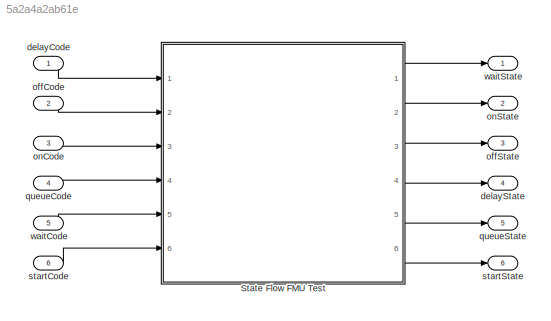
MODEL slx_5a2a4a2ab61e
KIND model
CONFIG AbsTol = auto
CONFIG EnableMultiTasking = off
CONFIG FixedStep = auto
CONFIG MaxStep = auto
CONFIG MinStep = auto
CONFIG RelTol = 1e-3
CONFIG SampleTimeConstraint = Unconstrained
CONFIG SolverName = FixedStepAuto
CONFIG StartTime = 0.0
CONFIG StopTime = 5.0
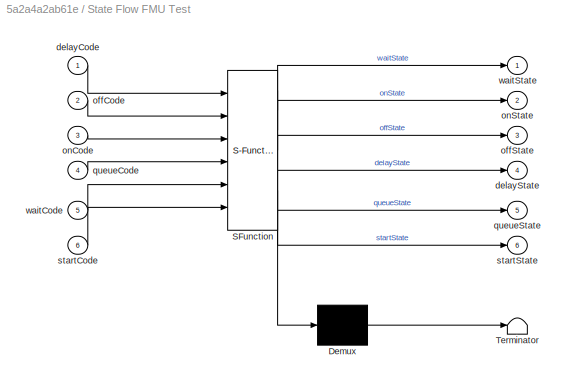
BLOCK [SubSystem] State Flow FMU Test
  ErrorFcn = Stateflow.Translate.translate
  PermitHierarchicalResolution = ExplicitOnly
  Ports = [6, 6]
  RequestExecContextInheritance = off
  SFBlockType = Chart
  TreatAsAtomicUnit = on
BLOCK [Demux] State Flow FMU Test/ Demux 
  Outputs = 1
  Ports = [1, 1]
BLOCK [S-Function] State Flow FMU Test/ SFunction 
  EnableBusSupport = on
  FunctionName = sf_sfun
  PortCounts = [6 7]
  Ports = [6, 7]
  SFcnIsStateOwnerBlock = off
  SFunctionDeploymentMode = off
  Tag = Stateflow S-Function 3
BLOCK [Terminator] State Flow FMU Test/ Terminator 
BLOCK [Inport] State Flow FMU Test/delayCode
BLOCK [Outport] State Flow FMU Test/delayState
  Port = 4
BLOCK [Inport] State Flow FMU Test/offCode
  Port = 2
BLOCK [Outport] State Flow FMU Test/offState
  Port = 3
BLOCK [Inport] State Flow FMU Test/onCode
  Port = 3
BLOCK [Outport] State Flow FMU Test/onState
  Port = 2
BLOCK [Inport] State Flow FMU Test/queueCode
  Port = 4
BLOCK [Outport] State Flow FMU Test/queueState
  Port = 5
BLOCK [Inport] State Flow FMU Test/startCode
  Port = 6
BLOCK [Outport] State Flow FMU Test/startState
  Port = 6
BLOCK [Inport] State Flow FMU Test/waitCode
  Port = 5
BLOCK [Outport] State Flow FMU Test/waitState
BLOCK [Inport] delayCode
BLOCK [Outport] delayState
  Port = 4
BLOCK [Inport] offCode
  Port = 2
BLOCK [Outport] offState
  Port = 3
BLOCK [Inport] onCode
  Port = 3
BLOCK [Outport] onState
  Port = 2
BLOCK [Inport] queueCode
  Port = 4
BLOCK [Outport] queueState
  Port = 5
BLOCK [Inport] startCode
  Port = 6
BLOCK [Outport] startState
  Port = 6
BLOCK [Inport] waitCode
  Port = 5
BLOCK [Outport] waitState
LINE State Flow FMU Test:1 -> waitState:1
LINE State Flow FMU Test:2 -> onState:1
LINE State Flow FMU Test:3 -> offState:1
LINE State Flow FMU Test:4 -> delayState:1
LINE State Flow FMU Test:5 -> queueState:1
LINE State Flow FMU Test:6 -> startState:1
LINE delayCode:1 -> State Flow FMU Test:1
LINE offCode:1 -> State Flow FMU Test:2
LINE onCode:1 -> State Flow FMU Test:3
LINE queueCode:1 -> State Flow FMU Test:4
LINE startCode:1 -> State Flow FMU Test:6
LINE waitCode:1 -> State Flow FMU Test:5
CHART State Flow FMU Test states=6 transitions=13
  STATE_LABEL 'start/\nstartState=1;\ndelayState=1;\n'
  STATE_LABEL 'on/\nonState=1;'
  STATE_LABEL 'wait/\nwaitState=1;'
  STATE_LABEL 'delay/\ndelayState==1;'
  STATE_LABEL 'queue/\nqueueState==1;'
  STATE_LABEL 'off/\noffState==1;'
CHART  states=0 transitions=0
